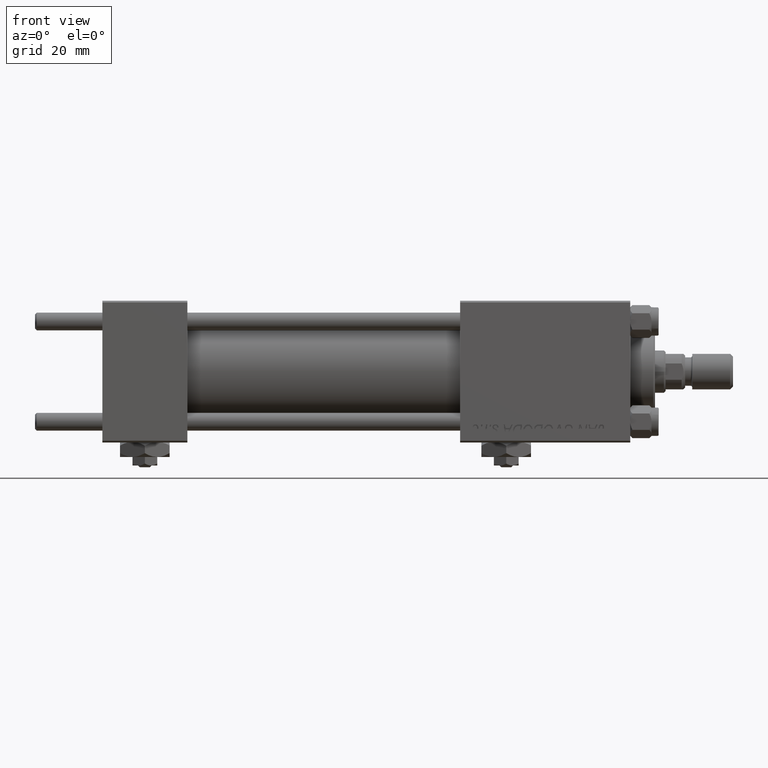
[diagram: clean part render]
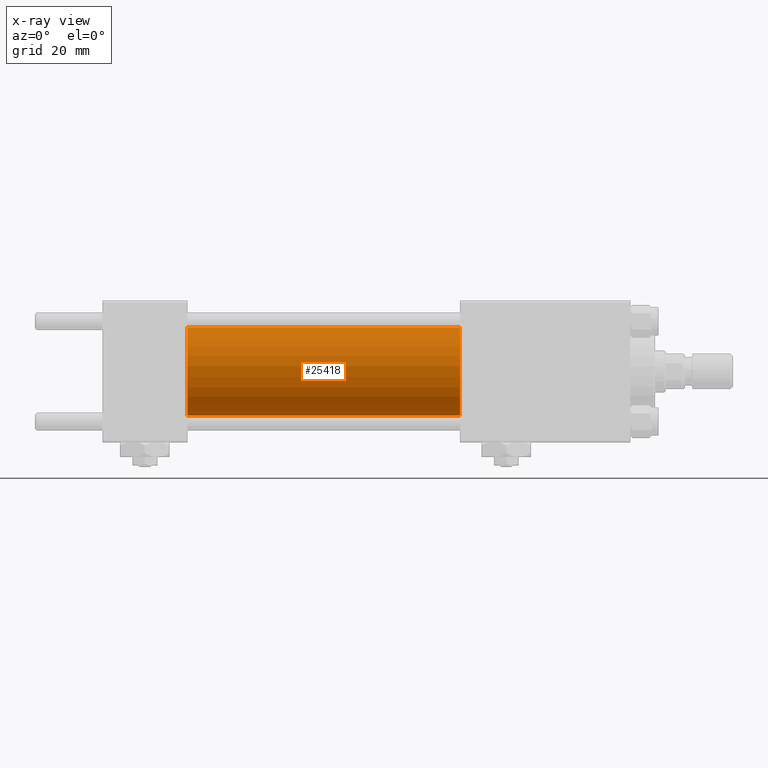
[diagram: x-ray — body ghosted, one internal face saturated and labeled with its STEP entity id]
A machine part, front view, then the same camera in x-ray: the body is ghosted and one INTERNAL B-rep face — a face not visible from any outside direction — is saturated and labeled: STEP entity #25418.
In plain terms, the highlighted cylindrical surface (partial cylindrical patch) has radius 12.5 mm, axis along (-1, -0, -0).
Its self-contained STEP definition (entity closure, byte-faithful):
#1678 = EDGE_CURVE ( 'NONE', #18615, #7645, #5709, .T. ) ;
#4491 = CIRCLE ( 'NONE', #33998, 12.49999999999999645 ) ;
#5709 = LINE ( 'NONE', #21820, #47104 ) ;
#6880 = CARTESIAN_POINT ( 'NONE',  ( 24.00000000000000000, 0.000000000000000000, 0.000000000000000000 ) ) ;
#6998 = ORIENTED_EDGE ( 'NONE', *, *, #21551, .F. ) ;
#7625 = CARTESIAN_POINT ( 'NONE',  ( 101.0000000000000000, 0.000000000000000000, 0.000000000000000000 ) ) ;
#7645 = VERTEX_POINT ( 'NONE', #25490 ) ;
#7880 = DIRECTION ( 'NONE',  ( 0.000000000000000000, 0.000000000000000000, -1.000000000000000000 ) ) ;
#9133 = ORIENTED_EDGE ( 'NONE', *, *, #1678, .T. ) ;
#11484 = EDGE_LOOP ( 'NONE', ( #48712, #9133, #6998, #36449 ) ) ;
#11619 = DIRECTION ( 'NONE',  ( 1.000000000000000000, 0.000000000000000000, 0.000000000000000000 ) ) ;
#12104 = CARTESIAN_POINT ( 'NONE',  ( 24.00000000000000000, 0.000000000000000000, 12.49999999999999645 ) ) ;
#15717 = FACE_OUTER_BOUND ( 'NONE', #11484, .T. ) ;
#15974 = DIRECTION ( 'NONE',  ( 0.000000000000000000, 0.000000000000000000, 1.000000000000000000 ) ) ;
#16423 = LINE ( 'NONE', #32547, #45417 ) ;
#18615 = VERTEX_POINT ( 'NONE', #45809 ) ;
#19935 = DIRECTION ( 'NONE',  ( -1.000000000000000000, -0.000000000000000000, -0.000000000000000000 ) ) ;
#21551 = EDGE_CURVE ( 'NONE', #45004, #7645, #4491, .T. ) ;
#21820 = CARTESIAN_POINT ( 'NONE',  ( 101.0000000000000000, 1.530808498934191127E-15, -12.49999999999999645 ) ) ;
#25418 = ADVANCED_FACE ( 'NONE', ( #15717 ), #27866, .F. ) ;
#25490 = CARTESIAN_POINT ( 'NONE',  ( 24.00000000000000000, 1.530808498934191127E-15, -12.49999999999999645 ) ) ;
#27866 = CYLINDRICAL_SURFACE ( 'NONE', #51915, 12.49999999999999645 ) ;
#27950 = DIRECTION ( 'NONE',  ( 1.000000000000000000, 0.000000000000000000, 0.000000000000000000 ) ) ;
#28380 = CARTESIAN_POINT ( 'NONE',  ( 101.0000000000000000, 0.000000000000000000, 0.000000000000000000 ) ) ;
#32547 = CARTESIAN_POINT ( 'NONE',  ( 101.0000000000000000, 0.000000000000000000, 12.49999999999999645 ) ) ;
#32868 = CIRCLE ( 'NONE', #39623, 12.49999999999999645 ) ;
#33998 = AXIS2_PLACEMENT_3D ( 'NONE', #6880, #11619, #43064 ) ;
#36449 = ORIENTED_EDGE ( 'NONE', *, *, #37947, .F. ) ;
#37947 = EDGE_CURVE ( 'NONE', #46360, #45004, #16423, .T. ) ;
#39623 = AXIS2_PLACEMENT_3D ( 'NONE', #7625, #27950, #7880 ) ;
#40357 = CARTESIAN_POINT ( 'NONE',  ( 101.0000000000000000, 0.000000000000000000, 12.49999999999999645 ) ) ;
#42678 = DIRECTION ( 'NONE',  ( -1.000000000000000000, -0.000000000000000000, -0.000000000000000000 ) ) ;
#43064 = DIRECTION ( 'NONE',  ( 0.000000000000000000, 0.000000000000000000, -1.000000000000000000 ) ) ;
#43756 = EDGE_CURVE ( 'NONE', #46360, #18615, #32868, .T. ) ;
#44689 = DIRECTION ( 'NONE',  ( -1.000000000000000000, -0.000000000000000000, -0.000000000000000000 ) ) ;
#45004 = VERTEX_POINT ( 'NONE', #12104 ) ;
#45417 = VECTOR ( 'NONE', #44689, 1000.000000000000000 ) ;
#45809 = CARTESIAN_POINT ( 'NONE',  ( 101.0000000000000000, 1.530808498934191127E-15, -12.49999999999999645 ) ) ;
#46360 = VERTEX_POINT ( 'NONE', #40357 ) ;
#47104 = VECTOR ( 'NONE', #42678, 1000.000000000000000 ) ;
#48712 = ORIENTED_EDGE ( 'NONE', *, *, #43756, .T. ) ;
#51915 = AXIS2_PLACEMENT_3D ( 'NONE', #28380, #19935, #15974 ) ;